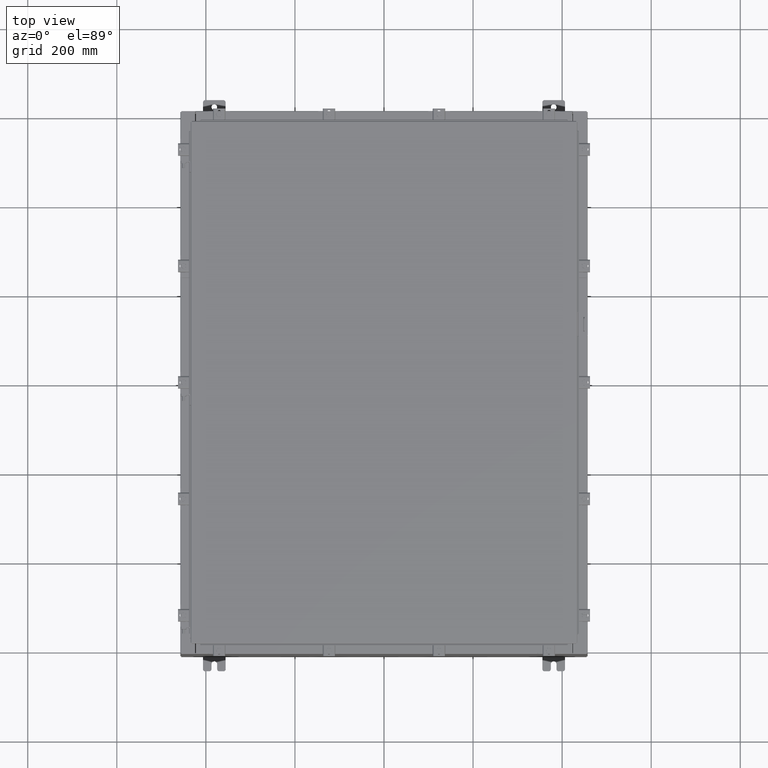
[diagram: clean part render]
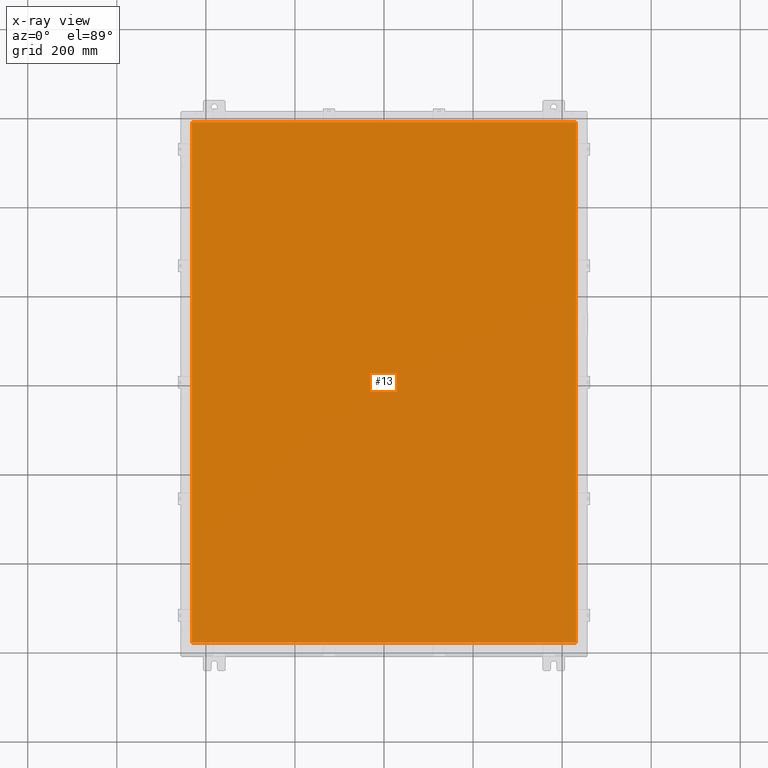
[diagram: x-ray — body ghosted, one internal face saturated and labeled with its STEP entity id]
A machine part, top view, then the same camera in x-ray: the body is ghosted and one INTERNAL B-rep face — a face not visible from any outside direction — is saturated and labeled: STEP entity #13.
In plain terms, the highlighted planar face has unit normal (0, 0, -1).
Its self-contained STEP definition (entity closure, byte-faithful):
#13 = ADVANCED_FACE ( 'NONE', ( #23169 ), #16526, .T. ) ;
#507 = AXIS2_PLACEMENT_3D ( 'NONE', #18287, #24764, #25282 ) ;
#1533 = VERTEX_POINT ( 'NONE', #27078 ) ;
#2132 = ORIENTED_EDGE ( 'NONE', *, *, #22411, .F. ) ;
#2200 = VERTEX_POINT ( 'NONE', #6948 ) ;
#4233 = EDGE_CURVE ( 'NONE', #6335, #1533, #26763, .T. ) ;
#5627 = CARTESIAN_POINT ( 'NONE',  ( -16.99029999999999800, 23.00629999999999600, -0.07470000000000015500 ) ) ;
#6219 = CARTESIAN_POINT ( 'NONE',  ( 16.99030000000000100, -23.00630000000000000, -0.07470000000000015500 ) ) ;
#6335 = VERTEX_POINT ( 'NONE', #8235 ) ;
#6948 = CARTESIAN_POINT ( 'NONE',  ( -16.99029999999999800, -23.00629999999999600, -0.07470000000000015500 ) ) ;
#8002 = LINE ( 'NONE', #21615, #18550 ) ;
#8235 = CARTESIAN_POINT ( 'NONE',  ( 16.99030000000000100, 23.00629999999999600, -0.07470000000000015500 ) ) ;
#8465 = DIRECTION ( 'NONE',  ( 1.000000000000000000, -0.0000000000000000000, -0.0000000000000000000 ) ) ;
#8968 = EDGE_CURVE ( 'NONE', #16024, #6335, #8002, .T. ) ;
#8991 = LINE ( 'NONE', #5627, #13939 ) ;
#9039 = DIRECTION ( 'NONE',  ( 0.0000000000000000000, 1.000000000000000000, 0.0000000000000000000 ) ) ;
#9051 = ORIENTED_EDGE ( 'NONE', *, *, #8968, .F. ) ;
#13939 = VECTOR ( 'NONE', #22463, 39.37007874015748100 ) ;
#16024 = VERTEX_POINT ( 'NONE', #6219 ) ;
#16526 = PLANE ( 'NONE',  #507 ) ;
#18287 = CARTESIAN_POINT ( 'NONE',  ( 0.0000000000000000000, 0.0000000000000000000, -0.07470000000000015500 ) ) ;
#18550 = VECTOR ( 'NONE', #9039, 39.37007874015748100 ) ;
#20313 = LINE ( 'NONE', #23141, #25874 ) ;
#21165 = VECTOR ( 'NONE', #25746, 39.37007874015748100 ) ;
#21541 = CARTESIAN_POINT ( 'NONE',  ( 16.99029999999999800, 23.00630000000000000, -0.07469999999999797600 ) ) ;
#21615 = CARTESIAN_POINT ( 'NONE',  ( 16.99030000000000100, -23.00629999999999600, -0.07470000000000015500 ) ) ;
#22411 = EDGE_CURVE ( 'NONE', #2200, #16024, #20313, .T. ) ;
#22463 = DIRECTION ( 'NONE',  ( 0.0000000000000000000, -1.000000000000000000, 0.0000000000000000000 ) ) ;
#22687 = ORIENTED_EDGE ( 'NONE', *, *, #27269, .F. ) ;
#23141 = CARTESIAN_POINT ( 'NONE',  ( -16.99029999999999800, -23.00630000000000000, -0.07469999999999797600 ) ) ;
#23169 = FACE_OUTER_BOUND ( 'NONE', #26677, .T. ) ;
#24764 = DIRECTION ( 'NONE',  ( 0.0000000000000000000, 0.0000000000000000000, -1.000000000000000000 ) ) ;
#25013 = ORIENTED_EDGE ( 'NONE', *, *, #4233, .F. ) ;
#25282 = DIRECTION ( 'NONE',  ( -1.000000000000000000, 0.0000000000000000000, -0.0000000000000000000 ) ) ;
#25746 = DIRECTION ( 'NONE',  ( -1.000000000000000000, -0.0000000000000000000, -0.0000000000000000000 ) ) ;
#25874 = VECTOR ( 'NONE', #8465, 39.37007874015748100 ) ;
#26677 = EDGE_LOOP ( 'NONE', ( #9051, #2132, #22687, #25013 ) ) ;
#26763 = LINE ( 'NONE', #21541, #21165 ) ;
#27078 = CARTESIAN_POINT ( 'NONE',  ( -16.99029999999999800, 23.00629999999999600, -0.07470000000000015500 ) ) ;
#27269 = EDGE_CURVE ( 'NONE', #1533, #2200, #8991, .T. ) ;